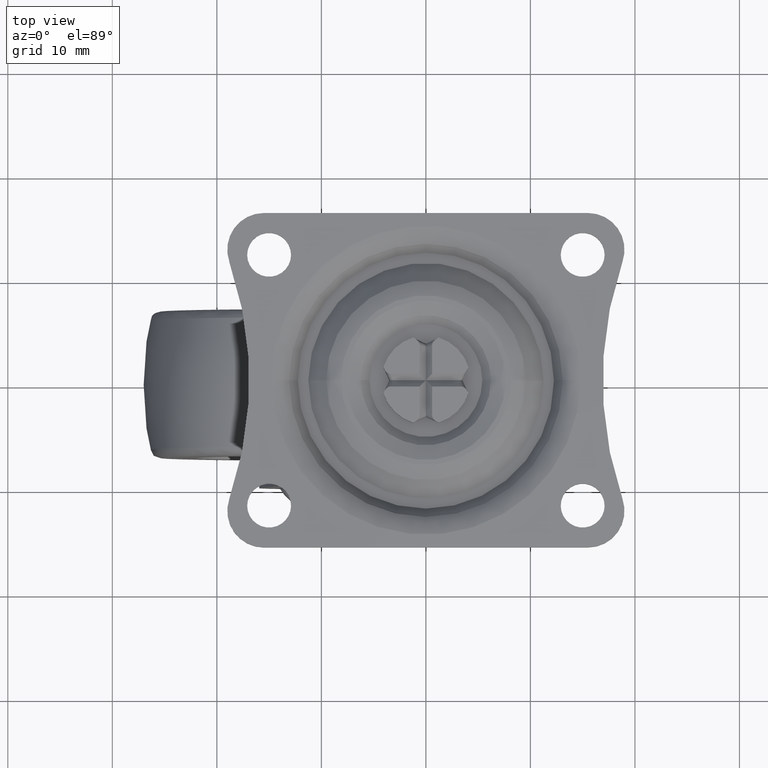
[diagram: clean part render]
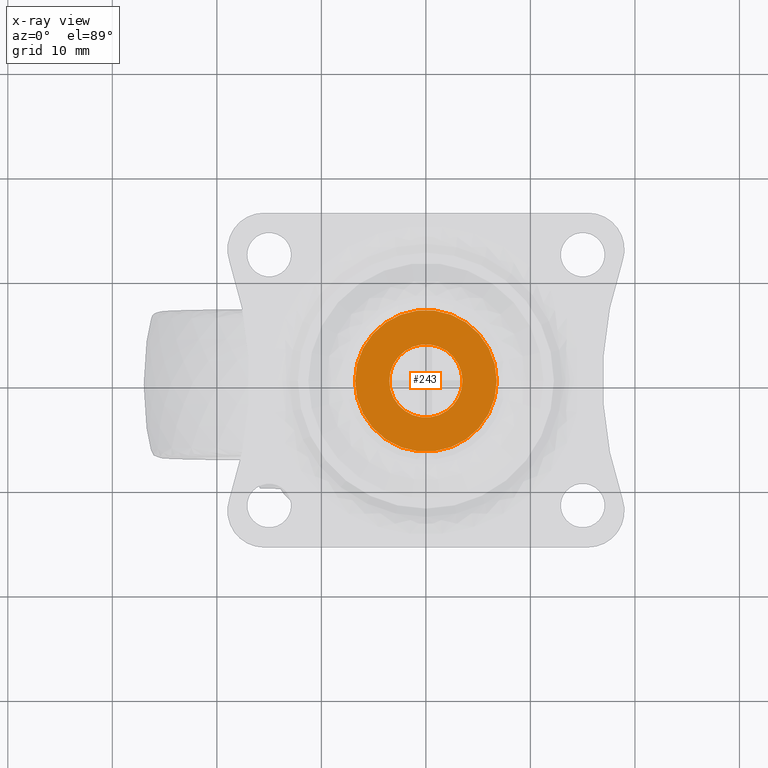
[diagram: x-ray — body ghosted, one internal face saturated and labeled with its STEP entity id]
A machine part, top view, then the same camera in x-ray: the body is ghosted and one INTERNAL B-rep face — a face not visible from any outside direction — is saturated and labeled: STEP entity #243.
In plain terms, the highlighted planar face has unit normal (0, 0, 1).
Its self-contained STEP definition (entity closure, byte-faithful):
#243=ADVANCED_FACE('',(#675,#676),#674,.T.);
#674=PLANE('',#3318);
#675=FACE_OUTER_BOUND('',#3319,.T.);
#676=FACE_BOUND('',#3320,.T.);
#3315=CARTESIAN_POINT('',(-8.81393590375E+00,-1.40918628923E+01,-4.40000000000E+00));
#3316=DIRECTION('',(0.00000000000E+00,0.00000000000E+00,1.00000000000E+00));
#3317=DIRECTION('',(1.00000000000E+00,0.00000000000E+00,0.00000000000E+00));
#3318=AXIS2_PLACEMENT_3D('',#3315,#3316,#3317);
#3319=EDGE_LOOP('',(#5563,#5564));
#3320=EDGE_LOOP('',(#5565,#5566));
#5563=ORIENTED_EDGE('',*,*,#6746,.F.);
#5564=ORIENTED_EDGE('',*,*,#6747,.F.);
#5565=ORIENTED_EDGE('',*,*,#6748,.F.);
#5566=ORIENTED_EDGE('',*,*,#6749,.F.);
#6746=EDGE_CURVE('',#7889,#7890,#7891,.T.);
#6747=EDGE_CURVE('',#7890,#7889,#7897,.T.);
#6748=EDGE_CURVE('',#7903,#7904,#7905,.T.);
#6749=EDGE_CURVE('',#7904,#7903,#7911,.T.);
#7889=VERTEX_POINT('',#11845);
#7890=VERTEX_POINT('',#11846);
#7891=CIRCLE('',#11850,6.77995069519E+00);
#7897=CIRCLE('',#11854,6.77995069519E+00);
#7903=VERTEX_POINT('',#11855);
#7904=VERTEX_POINT('',#11856);
#7905=CIRCLE('',#11860,3.49999450000E+00);
#7911=CIRCLE('',#11864,3.49999450000E+00);
#11845=CARTESIAN_POINT('',(6.77995069519E+00,0.00000000000E+00,-4.40000000000E+00));
#11846=CARTESIAN_POINT('',(-6.77995069519E+00,0.00000000000E+00,-4.40000000000E+00));
#11847=CARTESIAN_POINT('',(0.00000000000E+00,0.00000000000E+00,-4.40000000000E+00));
#11848=DIRECTION('',(-0.00000000000E+00,0.00000000000E+00,-1.00000000000E+00));
#11849=DIRECTION('',(-1.00000000000E+00,-1.22460635382E-16,0.00000000000E+00));
#11850=AXIS2_PLACEMENT_3D('',#11847,#11848,#11849);
#11851=CARTESIAN_POINT('',(0.00000000000E+00,0.00000000000E+00,-4.40000000000E+00));
#11852=DIRECTION('',(-0.00000000000E+00,0.00000000000E+00,-1.00000000000E+00));
#11853=DIRECTION('',(-1.00000000000E+00,-1.22460635382E-16,0.00000000000E+00));
#11854=AXIS2_PLACEMENT_3D('',#11851,#11852,#11853);
#11855=CARTESIAN_POINT('',(3.49998900000E+00,5.49999983024E-06,-4.40000000000E+00));
#11856=CARTESIAN_POINT('',(-3.50000000000E+00,5.49999982979E-06,-4.40000000000E+00));
#11857=CARTESIAN_POINT('',(-5.50000019927E-06,5.49999982979E-06,-4.40000000000E+00));
#11858=DIRECTION('',(0.00000000000E+00,0.00000000000E+00,1.00000000000E+00));
#11859=DIRECTION('',(-1.00000000000E+00,-1.22460635382E-16,0.00000000000E+00));
#11860=AXIS2_PLACEMENT_3D('',#11857,#11858,#11859);
#11861=CARTESIAN_POINT('',(-5.50000019927E-06,5.49999982979E-06,-4.40000000000E+00));
#11862=DIRECTION('',(0.00000000000E+00,0.00000000000E+00,1.00000000000E+00));
#11863=DIRECTION('',(-1.00000000000E+00,-1.22460635382E-16,0.00000000000E+00));
#11864=AXIS2_PLACEMENT_3D('',#11861,#11862,#11863);